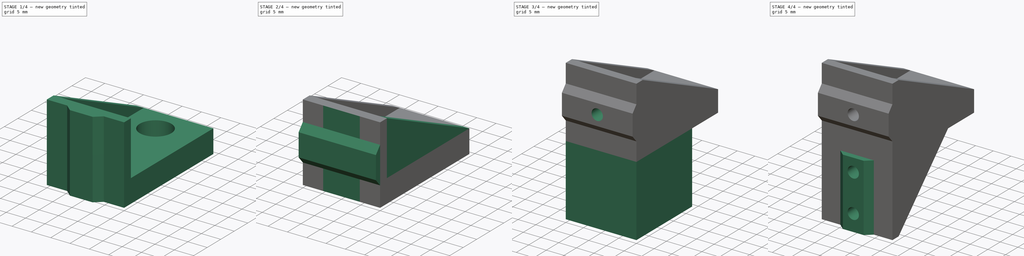
[diagram: build sequence overview — one tinted view per stage of 4, left to right]
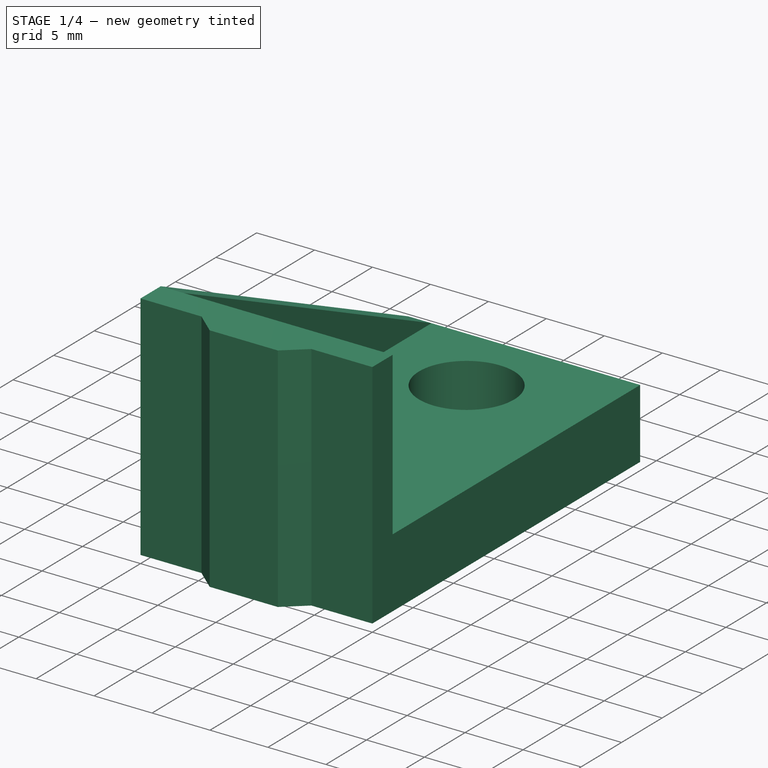
[diagram: stage 1 of 4 — iso view after this stage's code; geometry added in this stage tinted green]
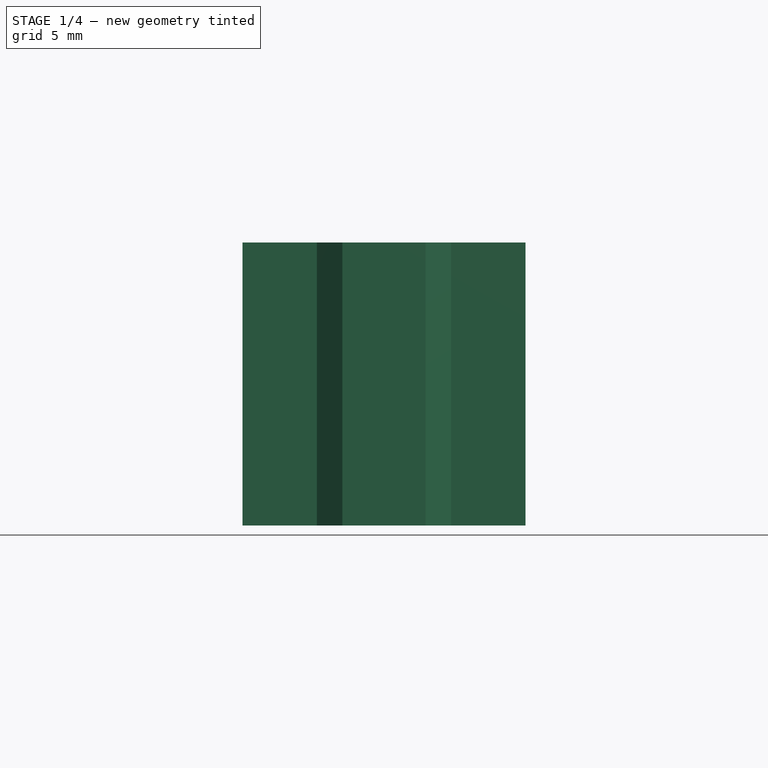
[diagram: stage 1 of 4 — front view after this stage's code; geometry added in this stage tinted green]
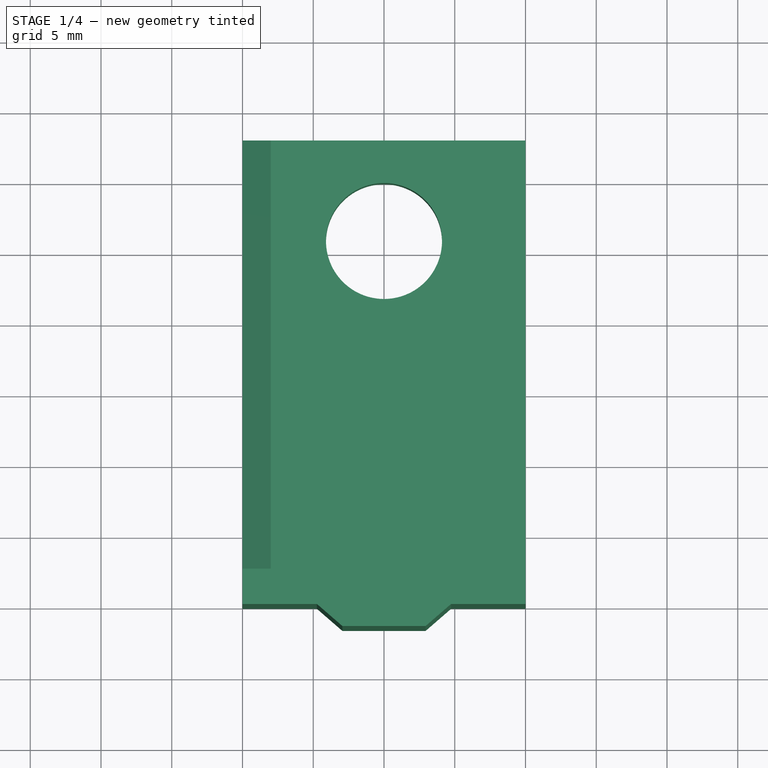
[diagram: stage 1 of 4 — top view after this stage's code; geometry added in this stage tinted green]
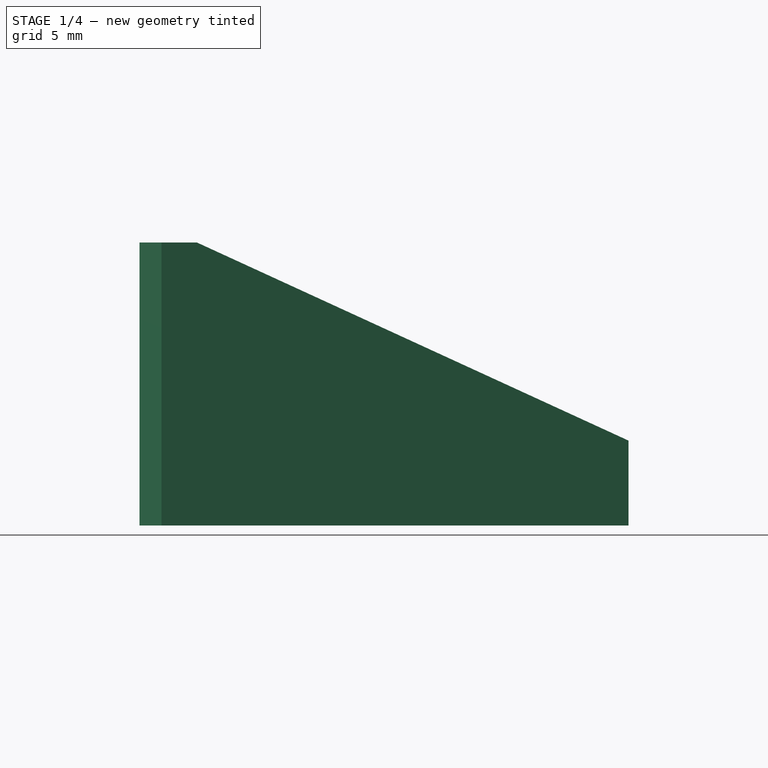
[diagram: stage 1 of 4 — right view after this stage's code; geometry added in this stage tinted green]
FCSTD DOCUMENT  (FreeCAD 0.20R29603 (Git))
Label: suporte-alca-90
License: All rights reserved
LicenseURL: http://en.wikipedia.org/wiki/All_rights_reserved
objects: Sketcher::SketchObject×11, PartDesign::Pad×9, PartDesign::Pocket×4, PartDesign::LinearPattern×1, PartDesign::Body×1
note: 39 computed .brp shape members not serialized (recipe doc carries the construction recipe); baked Part::Feature solids carry a one-line shape summary decoded from their .brp

FEATURE [Sketcher::SketchObject] Sketch
  FullyConstrained = true
  MapMode = 5
  Support = -> [XY_Plane]
  sketch-geometry (13):
    g0: LineSegment StartX=0 StartY=0 StartZ=0 EndX=-4.74 EndY=0 EndZ=0
    g1: LineSegment StartX=-4.74 StartY=0 StartZ=0 EndX=-2.94 EndY=-1.56 EndZ=0
    g2: LineSegment StartX=-2.94 StartY=-1.56 StartZ=0 EndX=2.94 EndY=-1.56 EndZ=0
    g3: LineSegment StartX=2.94 StartY=-1.56 StartZ=0 EndX=4.74 EndY=0 EndZ=0
    g4: LineSegment StartX=4.74 StartY=0 StartZ=0 EndX=0 EndY=0 EndZ=0
    g5: LineSegment StartX=-4.74 StartY=0 StartZ=0 EndX=-10 EndY=0 EndZ=0
    g6: LineSegment StartX=-10 StartY=0 StartZ=0 EndX=-10 EndY=33 EndZ=0
    g7: LineSegment StartX=-10 StartY=33 StartZ=0 EndX=10 EndY=33 EndZ=0
    g8: LineSegment StartX=10 StartY=33 StartZ=0 EndX=10 EndY=0 EndZ=0
    g9: LineSegment StartX=10 StartY=0 StartZ=0 EndX=4.74 EndY=0 EndZ=0
    g10: Circle CenterX=0 CenterY=25.9 CenterZ=0 NormalX=0 NormalY=0 NormalZ=1 AngleXU=0 Radius=4.1
    g11: GeomPoint X=0 Y=30 Z=0
    g12: GeomPoint X=0 Y=33 Z=0
  constraints (36):
    c: Coincident(g-1,g0)
    c: PointOnObject(g0,g-1)
    c: Coincident(g0,g1)
    c: Coincident(g1,g2)
    c: Horizontal(g2)
    c: Coincident(g2,g3)
    c: Coincident(g3,g4)
    c: Coincident(g4,g0)
    c: Horizontal(g4)
    c: DistanceY(g2,g3) = 1.56
    c: DistanceX(g0,g3) = 9.48
    c: DistanceX(g1,g2) = 5.88
    c: Equal(g3,g1)
    c: Equal(g0,g4)
    c: Coincident(g1,g5)
    c: PointOnObject(g5,g-1)
    c: Coincident(g5,g6)
    c: Vertical(g6)
    c: Coincident(g6,g7)
    c: Horizontal(g7)
    c: Coincident(g7,g8)
    c: PointOnObject(g8,g-1)
    c: Vertical(g8)
    c: Coincident(g8,g9)
    c: Coincident(g9,g3)
    c: Equal(g5,g9)
    c: DistanceY(g6,g6) = 33
    c: DistanceX(g7,g7) = 20
    c: PointOnObject(g10,g-2)
    c: PointOnObject(g11,g10)
    c: PointOnObject(g11,g-2)
    c: PointOnObject(g12,g7)
    c: PointOnObject(g12,g-2)
    c: DistanceY(g11,g12) = 3
    c: DistanceY(g-1,g10) = 25.9
    c: Radius(g10) = 4.1
FEATURE [PartDesign::Pad] Pad
  Direction = (1,1,1)
  Length = 6
  Length2 = 100
  Profile = -> Sketch
  Type = 0
FEATURE [Sketcher::SketchObject] Sketch001
  ExternalGeometry = -> [Pad]
  FullyConstrained = true
  MapMode = 5
  Placement = pos=(10,0,0) rot=(0.57735,0.57735,0.57735;2.0944rad)
  Support = -> [Pad]
  sketch-geometry (4):
    g0: LineSegment StartX=0 StartY=6 StartZ=0 EndX=2.5 EndY=6 EndZ=0
    g1: LineSegment StartX=2.5 StartY=6 StartZ=0 EndX=2.5 EndY=20 EndZ=0
    g2: LineSegment StartX=2.5 StartY=20 StartZ=0 EndX=0 EndY=20 EndZ=0
    g3: LineSegment StartX=0 StartY=20 StartZ=0 EndX=0 EndY=6 EndZ=0
  constraints (11):
    c: Coincident(g0,g1)
    c: Coincident(g1,g2)
    c: Coincident(g2,g3)
    c: Coincident(g3,g0)
    c: Horizontal(g0)
    c: Horizontal(g2)
    c: Vertical(g1)
    c: Vertical(g3)
    c: Coincident(g0,g-3)
    c: DistanceY(g-1,g2) = 20
    c: DistanceX(g2,g2) = 2.5
FEATURE [PartDesign::Pad] Pad001
  BaseFeature = -> Pad
  Direction = (1,1,1)
  Length = 20
  Length2 = 100
  Profile = -> Sketch001
  Reversed = true
  Type = 0
FEATURE [PartDesign::Pad] Pad002
  BaseFeature = -> Pad001
  Direction = (1,1,1)
  Length = 14
  Length2 = 100
  Profile = -> Pad001 [Face5]
  Type = 0
FEATURE [Sketcher::SketchObject] Sketch002
  ExternalGeometry = -> [Pad002]
  FullyConstrained = true
  MapMode = 5
  Placement = pos=(-10,0,0) rot=(0.57735,-0.57735,-0.57735;2.0944rad)
  Support = -> [Pad002]
  sketch-geometry (3):
    g0: LineSegment StartX=-33 StartY=6 StartZ=0 EndX=-2.5 EndY=20 EndZ=0
    g1: LineSegment StartX=-2.5 StartY=6 StartZ=0 EndX=-33 EndY=6 EndZ=0
    g2: LineSegment StartX=-2.5 StartY=6 StartZ=0 EndX=-2.5 EndY=20 EndZ=0
  constraints (6):
    c: Coincident(g0,g-4)
    c: Coincident(g0,g-3)
    c: Coincident(g1,g-4)
    c: Coincident(g2,g1)
    c: Coincident(g2,g0)
    c: Coincident(g0,g1)
FEATURE [PartDesign::Pad] Pad003
  BaseFeature = -> Pad002
  Direction = (1,1,1)
  Length = 2
  Length2 = 100
  Profile = -> Sketch002
  Reversed = true
  Type = 0
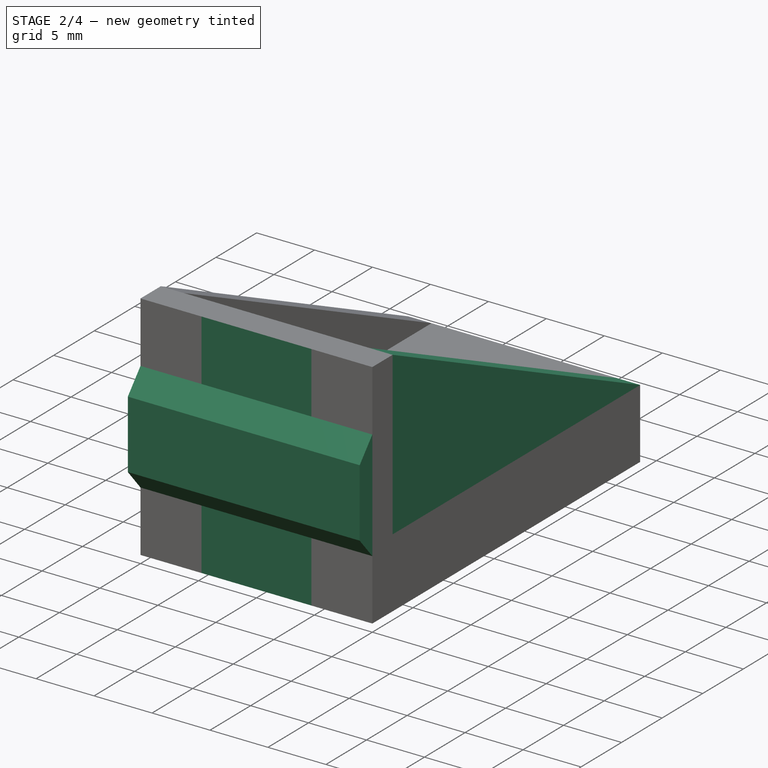
[diagram: stage 2 of 4 — iso view after this stage's code; geometry added in this stage tinted green]
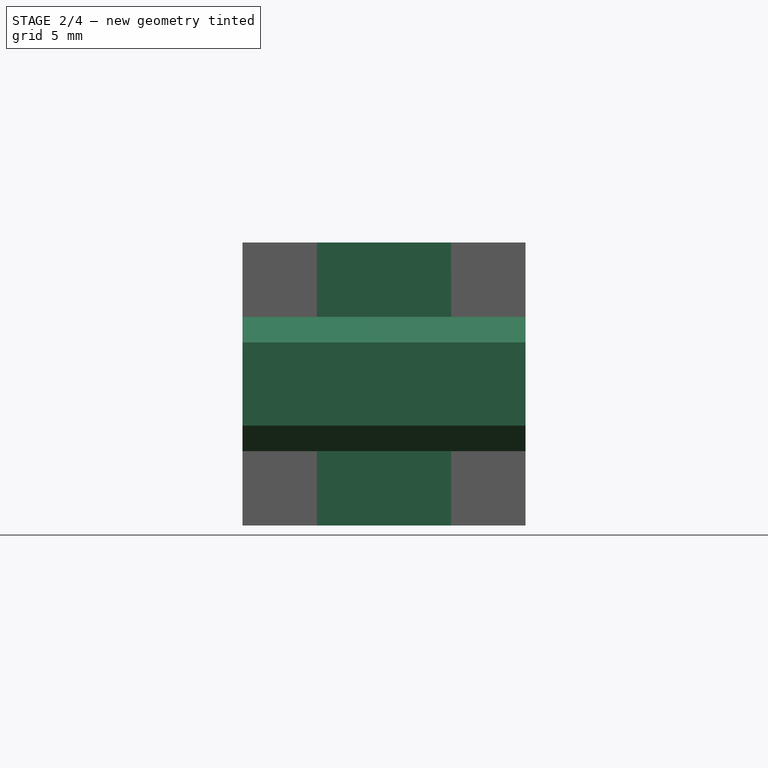
[diagram: stage 2 of 4 — front view after this stage's code; geometry added in this stage tinted green]
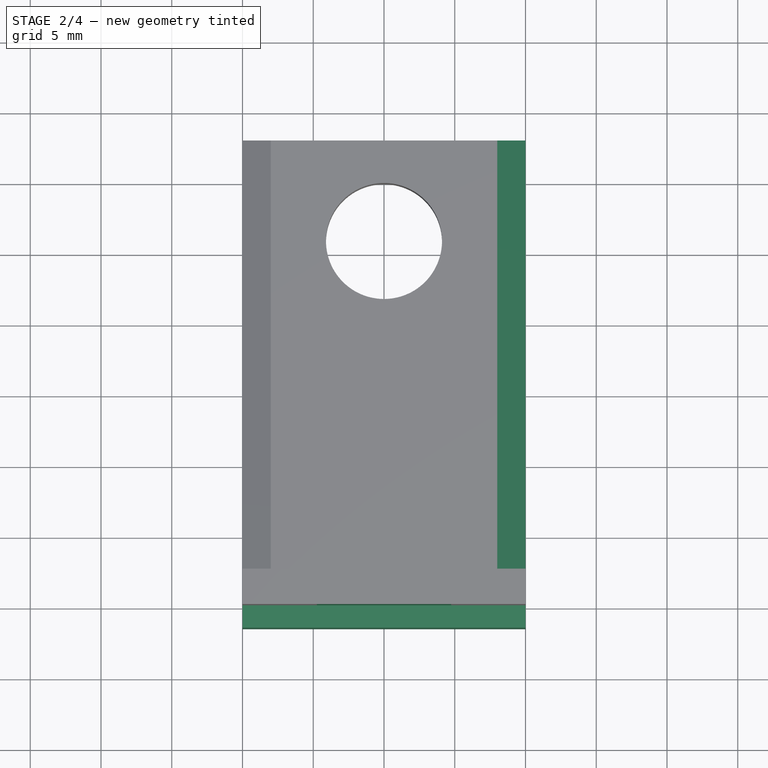
[diagram: stage 2 of 4 — top view after this stage's code; geometry added in this stage tinted green]
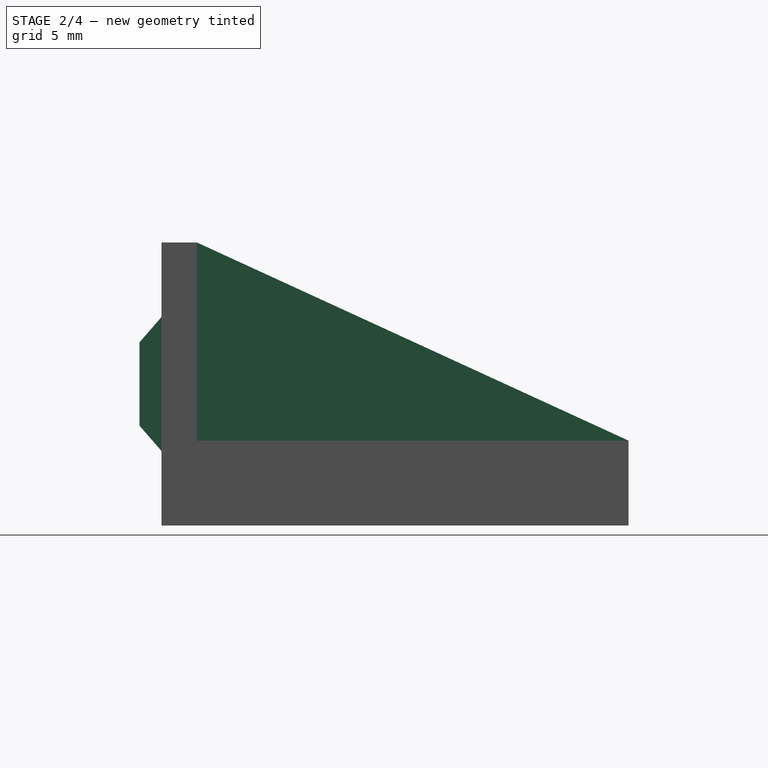
[diagram: stage 2 of 4 — right view after this stage's code; geometry added in this stage tinted green]
FEATURE [PartDesign::LinearPattern] LinearPattern
  BaseFeature = -> Pad003
  Direction = -> X_Axis
  Length = 18
  Occurrences = 2
  Originals = -> [Pad003]
FEATURE [PartDesign::Pocket] Pocket
  BaseFeature = -> LinearPattern
  Direction = (1,1,1)
  Length = 5
  Length2 = 100
  Profile = -> LinearPattern [Face14]
  Type = 1
FEATURE [Sketcher::SketchObject] Sketch003
  ExternalGeometry = -> [Pocket]
  FullyConstrained = true
  MapMode = 5
  Placement = pos=(-10,0,0) rot=(0.57735,-0.57735,-0.57735;2.0944rad)
  Support = -> [Pocket]
  sketch-geometry (7):
    g0: LineSegment StartX=0 StartY=20 StartZ=0 EndX=0 EndY=10 EndZ=0
    g1: LineSegment StartX=0 StartY=0 StartZ=0 EndX=0 EndY=10 EndZ=0
    g2: LineSegment StartX=0 StartY=10 StartZ=0 EndX=0 EndY=14.74 EndZ=0
    g3: LineSegment StartX=0 StartY=14.74 StartZ=0 EndX=1.56 EndY=12.94 EndZ=0
    g4: LineSegment StartX=1.56 StartY=12.94 StartZ=0 EndX=1.56 EndY=7.06 EndZ=0
    g5: LineSegment StartX=1.56 StartY=7.06 StartZ=0 EndX=0 EndY=5.26 EndZ=0
    g6: LineSegment StartX=0 StartY=5.26 StartZ=0 EndX=0 EndY=10 EndZ=0
  constraints (19):
    c: Coincident(g0,g-3)
    c: Coincident(g1,g-1)
    c: Coincident(g1,g0)
    c: PointOnObject(g0,g-2)
    c: Equal(g1,g0)
    c: Vertical(g2)
    c: Coincident(g3,g2)
    c: Vertical(g4)
    c: Vertical(g6)
    c: Coincident(g6,g2)
    c: Coincident(g6,g0)
    c: Coincident(g6,g5)
    c: Coincident(g5,g4)
    c: Coincident(g4,g3)
    c: Equal(g2,g6)
    c: Equal(g5,g3)
    c: DistanceY(g5,g2) = 9.48
    c: DistanceY(g4,g4) = 5.88
    c: DistanceX(g3,g3) = 1.56
FEATURE [PartDesign::Pad] Pad004
  BaseFeature = -> Pocket
  Direction = (1,1,1)
  Length = 10
  Length2 = 100
  Profile = -> Sketch003
  Reversed = true
  Type = 3
  UpToFace = -> Pocket [Face14]
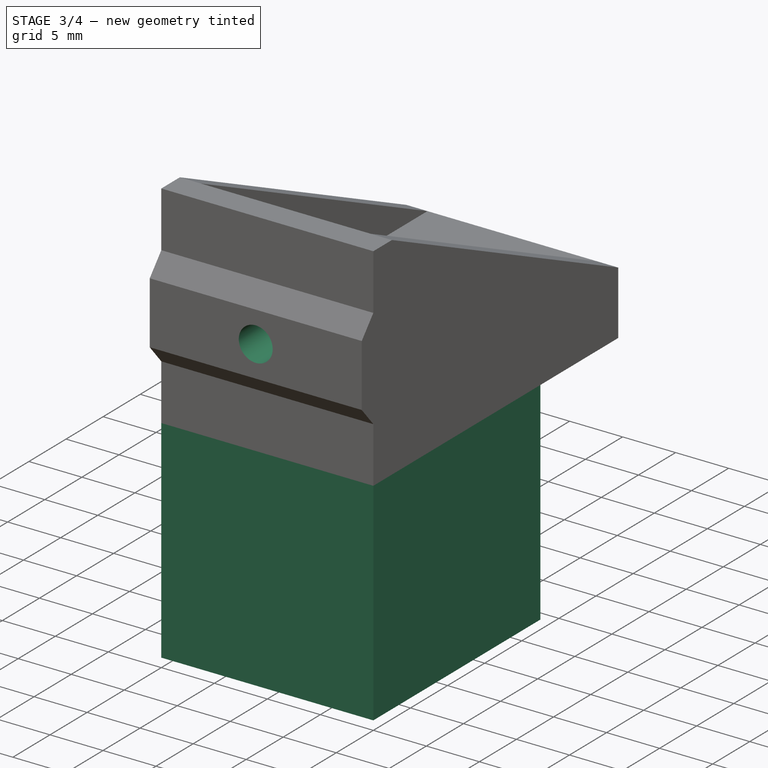
[diagram: stage 3 of 4 — iso view after this stage's code; geometry added in this stage tinted green]
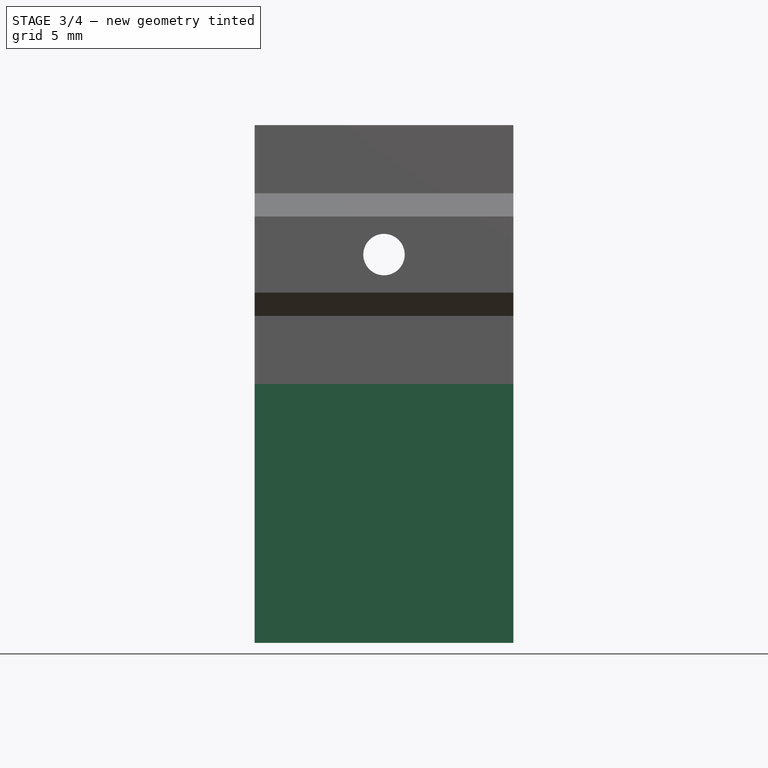
[diagram: stage 3 of 4 — front view after this stage's code; geometry added in this stage tinted green]
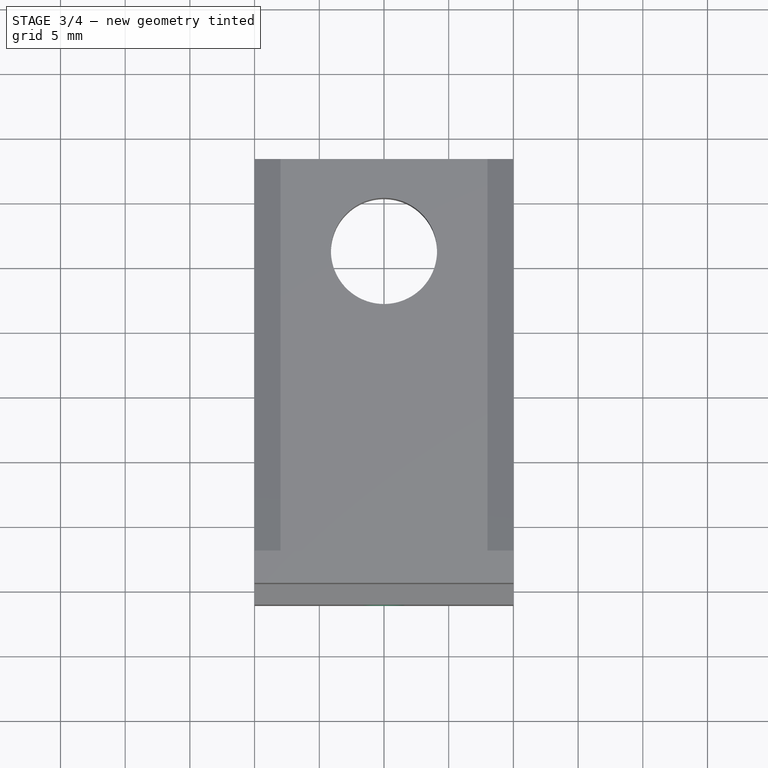
[diagram: stage 3 of 4 — top view after this stage's code; geometry added in this stage tinted green]
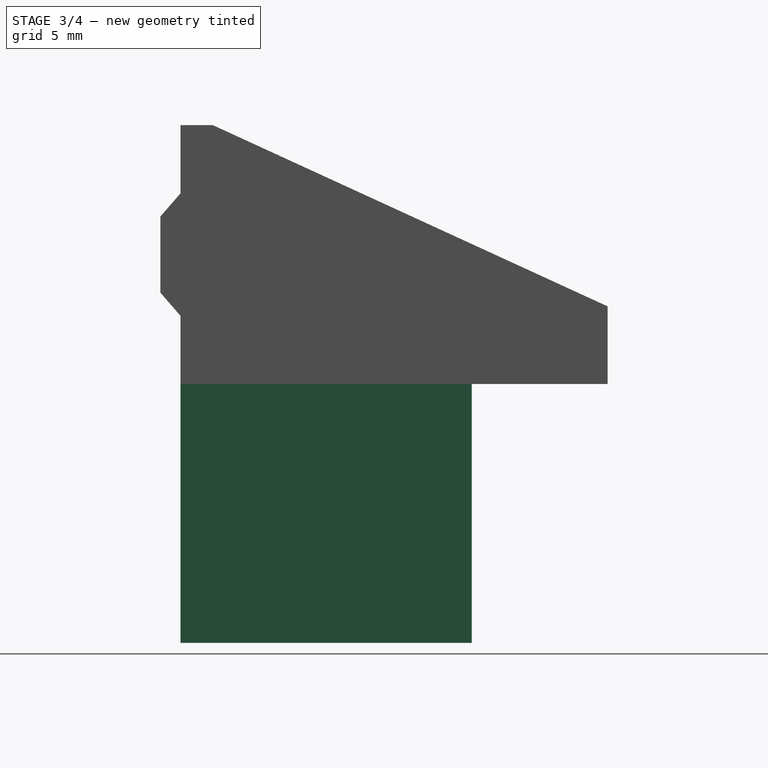
[diagram: stage 3 of 4 — right view after this stage's code; geometry added in this stage tinted green]
FEATURE [Sketcher::SketchObject] Sketch004
  ExternalGeometry = -> [Pad004]
  FullyConstrained = true
  MapMode = 5
  Placement = pos=(0,-1.56,0) rot=(1,0,0;1.5708rad)
  Support = -> [Pad004]
  sketch-geometry (3):
    g0: LineSegment StartX=-10 StartY=7.06 StartZ=0 EndX=10 EndY=12.94 EndZ=0
    g1: LineSegment StartX=-10 StartY=12.94 StartZ=0 EndX=10 EndY=7.06 EndZ=0
    g2: Circle CenterX=1.4e-15 CenterY=10 CenterZ=0 NormalX=0 NormalY=0 NormalZ=1 AngleXU=0 Radius=1.6
  constraints (7):
    c: Coincident(g0,g-4)
    c: Coincident(g0,g-3)
    c: Coincident(g1,g-3)
    c: Coincident(g1,g-4)
    c: PointOnObject(g2,g1)
    c: PointOnObject(g2,g0)
    c: Radius(g2) = 1.6
FEATURE [PartDesign::Pocket] Pocket001
  BaseFeature = -> Pad004
  Direction = (1,1,1)
  Length = 5
  Length2 = 100
  Profile = -> Sketch004
  Type = 1
FEATURE [Sketcher::SketchObject] Sketch005
  ExternalGeometry = -> [Pocket001]
  FullyConstrained = true
  MapMode = 5
  Placement = pos=(0,0,0) rot=(1,0,0;3.14159rad)
  Support = -> [Pocket001]
  sketch-geometry (4):
    g0: LineSegment StartX=-10 StartY=0 StartZ=0 EndX=10 EndY=0 EndZ=0
    g1: LineSegment StartX=10 StartY=0 StartZ=0 EndX=10 EndY=-2.5 EndZ=0
    g2: LineSegment StartX=10 StartY=-2.5 StartZ=0 EndX=-10 EndY=-2.5 EndZ=0
    g3: LineSegment StartX=-10 StartY=-2.5 StartZ=0 EndX=-10 EndY=0 EndZ=0
  constraints (12):
    c: Coincident(g0,g1)
    c: Coincident(g1,g2)
    c: Coincident(g2,g3)
    c: Coincident(g3,g0)
    c: Horizontal(g0)
    c: Horizontal(g2)
    c: Vertical(g1)
    c: Vertical(g3)
    c: PointOnObject(g-3,g2)
    c: PointOnObject(g2,g-5)
    c: PointOnObject(g1,g-6)
    c: PointOnObject(g-1,g0)
FEATURE [PartDesign::Pad] Pad005
  BaseFeature = -> Pocket001
  Direction = (0,0,-1)
  Length = 20
  Length2 = 10
  Profile = -> Sketch005
  ReferenceAxis = -> Sketch005 [N_Axis]
  Type = 0
FEATURE [Sketcher::SketchObject] Sketch006
  ExternalGeometry = -> [Pad005]
  FullyConstrained = true
  MapMode = 5
  Placement = pos=(10,0,0) rot=(0.57735,0.57735,0.57735;2.0944rad)
  Support = -> [Pad005]
  sketch-geometry (4):
    g0: LineSegment StartX=22.5 StartY=0 StartZ=0 EndX=2.5 EndY=0 EndZ=0
    g1: LineSegment StartX=2.5 StartY=0 StartZ=0 EndX=2.5 EndY=-20 EndZ=0
    g2: LineSegment StartX=2.5 StartY=-20 StartZ=0 EndX=22.5 EndY=-20 EndZ=0
    g3: LineSegment StartX=22.5 StartY=-20 StartZ=0 EndX=22.5 EndY=0 EndZ=0
  constraints (11):
    c: Coincident(g0,g1)
    c: Coincident(g1,g2)
    c: Coincident(g2,g3)
    c: Coincident(g3,g0)
    c: Horizontal(g0)
    c: Horizontal(g2)
    c: Vertical(g1)
    c: Vertical(g3)
    c: Coincident(g1,g-3)
    c: PointOnObject(g0,g-4)
    c: Equal(g1,g2)
FEATURE [PartDesign::Pad] Pad006
  BaseFeature = -> Pad005
  Direction = (1,0,0)
  Length = 3
  Length2 = 10
  Profile = -> Sketch006
  ReferenceAxis = -> Sketch006 [N_Axis]
  Reversed = true
  Type = 0
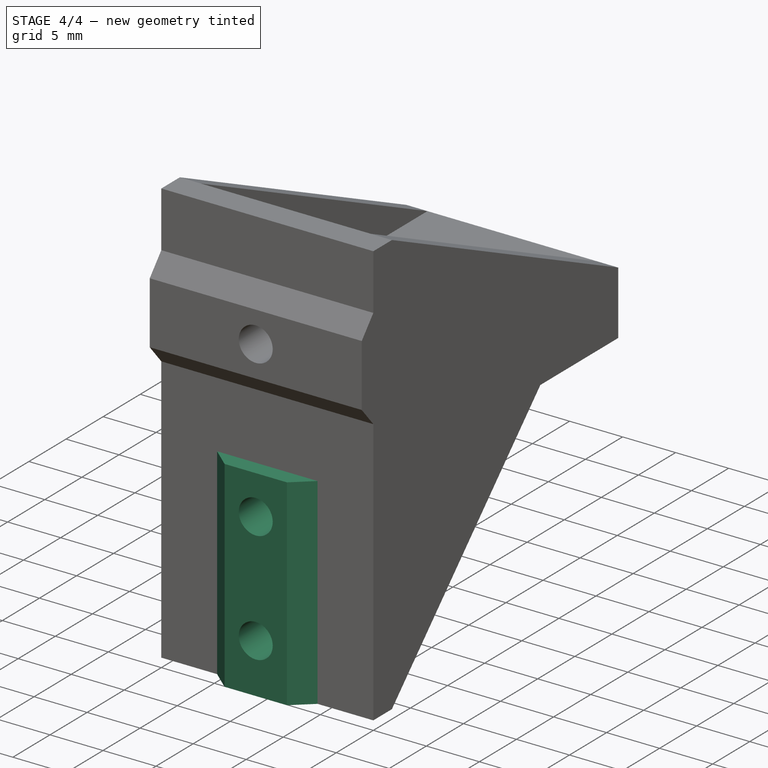
[diagram: stage 4 of 4 — iso view after this stage's code; geometry added in this stage tinted green]
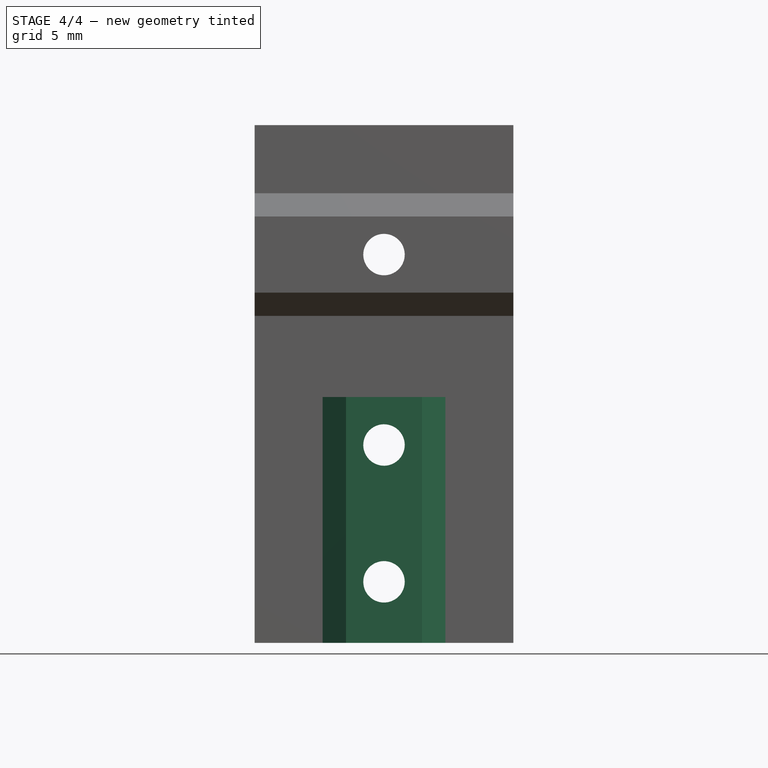
[diagram: stage 4 of 4 — front view after this stage's code; geometry added in this stage tinted green]
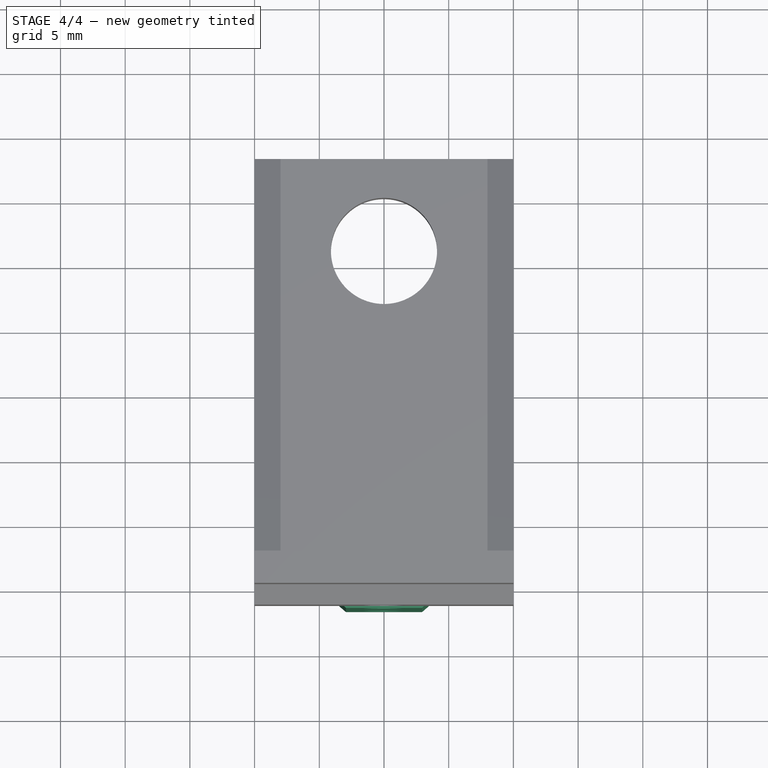
[diagram: stage 4 of 4 — top view after this stage's code; geometry added in this stage tinted green]
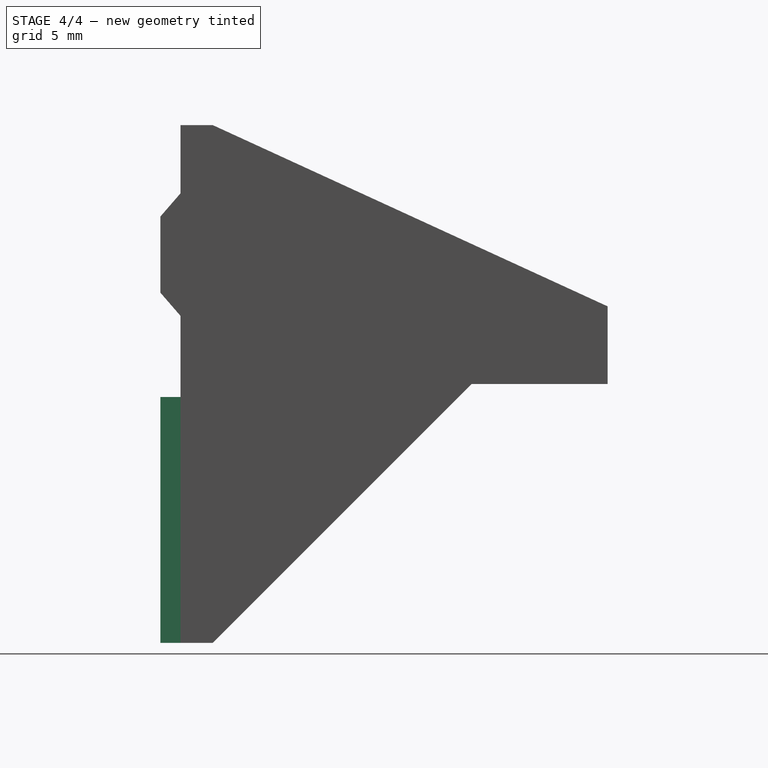
[diagram: stage 4 of 4 — right view after this stage's code; geometry added in this stage tinted green]
FEATURE [Sketcher::SketchObject] Sketch007
  ExternalGeometry = -> [Pad006]
  FullyConstrained = true
  MapMode = 5
  Placement = pos=(-10,0,0) rot=(0.57735,-0.57735,-0.57735;2.0944rad)
  Support = -> [Pad006]
  sketch-geometry (4):
    g0: LineSegment StartX=-22.5 StartY=0 StartZ=0 EndX=-2.5 EndY=0 EndZ=0
    g1: LineSegment StartX=-2.5 StartY=0 StartZ=0 EndX=-2.5 EndY=-20 EndZ=0
    g2: LineSegment StartX=-2.5 StartY=-20 StartZ=0 EndX=-22.5 EndY=-20 EndZ=0
    g3: LineSegment StartX=-22.5 StartY=-20 StartZ=0 EndX=-22.5 EndY=0 EndZ=0
  constraints (11):
    c: Coincident(g0,g1)
    c: Coincident(g1,g2)
    c: Coincident(g2,g3)
    c: Coincident(g3,g0)
    c: Horizontal(g0)
    c: Horizontal(g2)
    c: Vertical(g1)
    c: Vertical(g3)
    c: Coincident(g1,g-4)
    c: PointOnObject(g0,g-3)
    c: Equal(g1,g2)
FEATURE [PartDesign::Pad] Pad007
  BaseFeature = -> Pad006
  Direction = (-1,0,0)
  Length = 3
  Length2 = 10
  Profile = -> Sketch007
  ReferenceAxis = -> Sketch007 [N_Axis]
  Reversed = true
  Type = 0
FEATURE [Sketcher::SketchObject] Sketch008
  ExternalGeometry = -> [Pad007]
  FullyConstrained = true
  MapMode = 5
  Placement = pos=(10,0,0) rot=(0.57735,0.57735,0.57735;2.0944rad)
  Support = -> [Pad007]
  sketch-geometry (3):
    g0: LineSegment StartX=22.5 StartY=0 StartZ=0 EndX=2.5 EndY=-20 EndZ=0
    g1: LineSegment StartX=2.5 StartY=-20 StartZ=0 EndX=22.5 EndY=-20 EndZ=0
    g2: LineSegment StartX=22.5 StartY=-20 StartZ=0 EndX=22.5 EndY=0 EndZ=0
  constraints (6):
    c: Coincident(g0,g1)
    c: Coincident(g1,g2)
    c: Coincident(g2,g0)
    c: Coincident(g1,g-4)
    c: Coincident(g0,g-3)
    c: Coincident(g0,g-4)
FEATURE [PartDesign::Pocket] Pocket002
  BaseFeature = -> Pad007
  Direction = (-1,0,0)
  Length = 5
  Length2 = 5
  Profile = -> Sketch008
  ReferenceAxis = -> Sketch008 [N_Axis]
  Type = 1
FEATURE [Sketcher::SketchObject] Sketch009
  ExternalGeometry = -> [Pocket002]
  FullyConstrained = true
  MapMode = 5
  Placement = pos=(0,0,-20) rot=(1,0,0;3.14159rad)
  Support = -> [Pocket002]
  sketch-geometry (5):
    g0: LineSegment StartX=0 StartY=0 StartZ=0 EndX=-4.74 EndY=0 EndZ=0
    g1: LineSegment StartX=-4.74 StartY=0 StartZ=0 EndX=-2.94 EndY=1.56 EndZ=0
    g2: LineSegment StartX=-2.94 StartY=1.56 StartZ=0 EndX=2.94 EndY=1.56 EndZ=0
    g3: LineSegment StartX=2.94 StartY=1.56 StartZ=0 EndX=4.74 EndY=0 EndZ=0
    g4: LineSegment StartX=4.74 StartY=0 StartZ=0 EndX=0 EndY=0 EndZ=0
  constraints (14):
    c: Coincident(g0,g1)
    c: Coincident(g1,g2)
    c: Horizontal(g2)
    c: Coincident(g2,g3)
    c: Coincident(g3,g4)
    c: Coincident(g4,g0)
    c: Coincident(g0,g-1)
    c: Horizontal(g4)
    c: Horizontal(g0)
    c: Equal(g1,g3)
    c: Equal(g0,g4)
    c: PointOnObject(g1,g-3)
    c: DistanceX(g2,g2) = 5.88
    c: DistanceX(g0,g3) = 9.48
FEATURE [PartDesign::Pad] Pad008
  BaseFeature = -> Pocket002
  Direction = (0,0,-1)
  Length = 19
  Length2 = 10
  Profile = -> Sketch009
  ReferenceAxis = -> Sketch009 [N_Axis]
  Reversed = true
  Type = 0
FEATURE [Sketcher::SketchObject] Sketch010
  ExternalGeometry = -> [Pad008]
  FullyConstrained = true
  MapMode = 5
  Placement = pos=(0,-1.56,0) rot=(1,0,0;1.5708rad)
  Support = -> [Pad008]
  sketch-geometry (6):
    g0: LineSegment StartX=0 StartY=0 StartZ=0 EndX=0 EndY=-10 EndZ=0
    g1: LineSegment StartX=0 StartY=-10 StartZ=0 EndX=0 EndY=-20 EndZ=0
    g2: LineSegment StartX=0 StartY=-4.714 StartZ=0 EndX=0 EndY=-10 EndZ=0
    g3: LineSegment StartX=0 StartY=-10 StartZ=0 EndX=0 EndY=-15.286 EndZ=0
    g4: Circle CenterX=0 CenterY=-4.714 CenterZ=0 NormalX=0 NormalY=0 NormalZ=1 AngleXU=0 Radius=1.6
    g5: Circle CenterX=0 CenterY=-15.286 CenterZ=0 NormalX=0 NormalY=0 NormalZ=1 AngleXU=0 Radius=1.6
  constraints (16):
    c: Coincident(g1,g0)
    c: PointOnObject(g1,g-2)
    c: Horizontal(g1,g-3)
    c: PointOnObject(g0,g-2)
    c: Coincident(g0,g-1)
    c: Equal(g0,g1)
    c: Coincident(g3,g2)
    c: Coincident(g2,g0)
    c: Equal(g3,g2)
    c: Vertical(g2)
    c: Vertical(g3)
    c: Coincident(g4,g2)
    c: Coincident(g5,g3)
    c: Equal(g5,g4)
    c: Radius(g4) = 1.6
    c: DistanceY(g5,g4) = 10.572
FEATURE [PartDesign::Pocket] Pocket003
  BaseFeature = -> Pad008
  Direction = (0,1,-2e-16)
  Length = 5
  Length2 = 5
  Profile = -> Sketch010
  ReferenceAxis = -> Sketch010 [N_Axis]
  Type = 1
FEATURE [PartDesign::Body] Body
  Group = -> [Sketch,Pad,Sketch001,Pad001,Pad002,Sketch002,Pad003,LinearPattern,Pocket,Sketch003,Pad004,Sketch004,Pocket001,Sketch005,Pad005,Sketch006,Pad006,Sketch007,Pad007,Sketch008,Pocket002,Sketch009,Pad008,Sketch010,Pocket003]
  Origin = -> Origin
  Tip = -> Pocket003
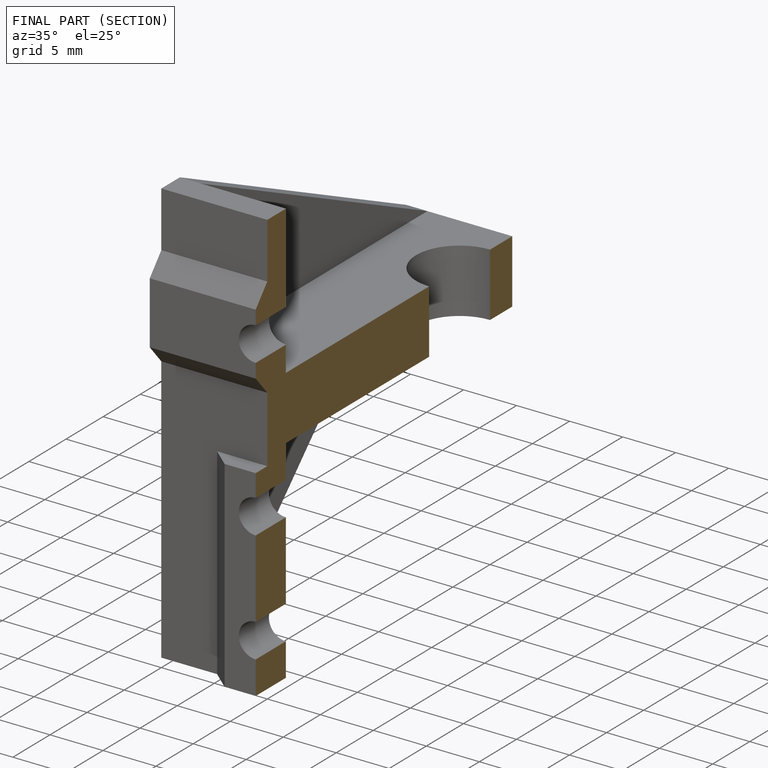
[diagram: finished part — half-section view (interior)]
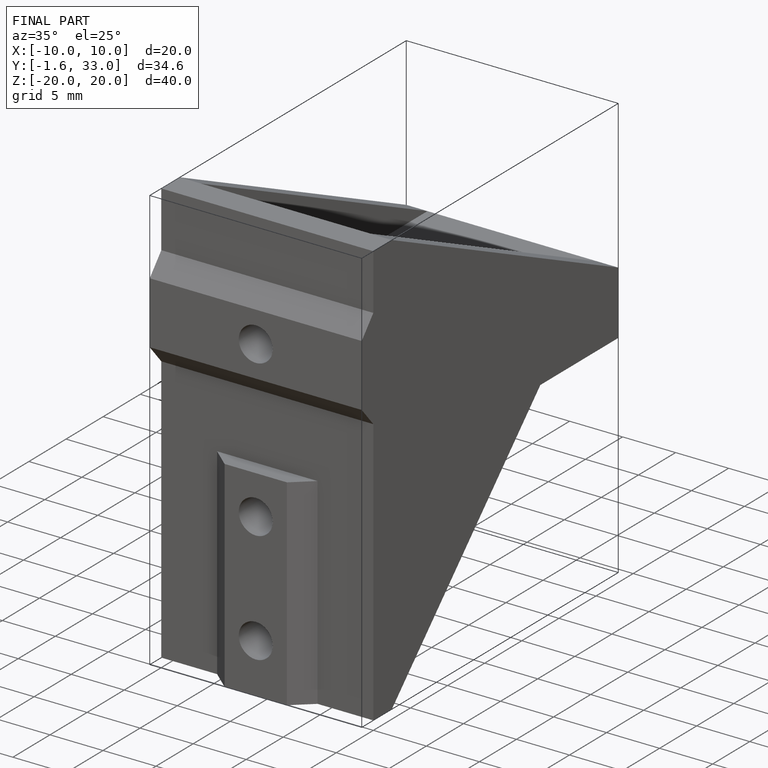
[diagram: finished part — iso view with bounding-box wireframe]
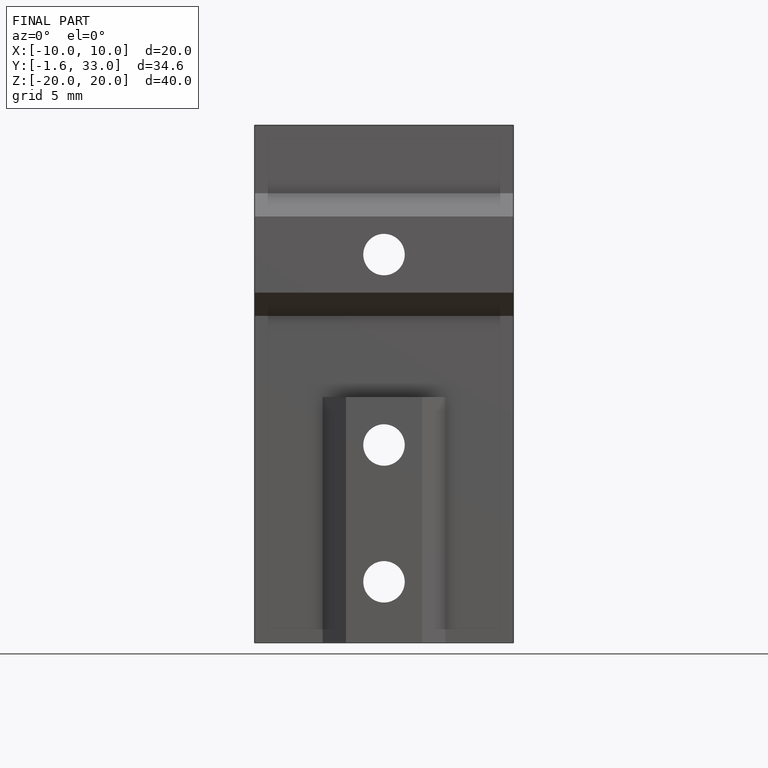
[diagram: finished part — front view with bounding-box wireframe]
